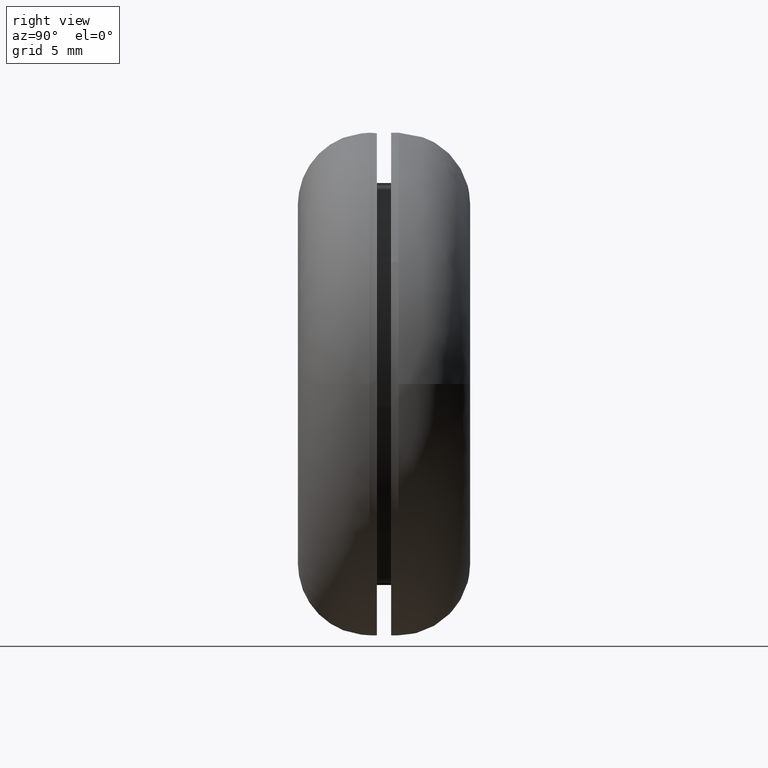
[diagram: clean part render]
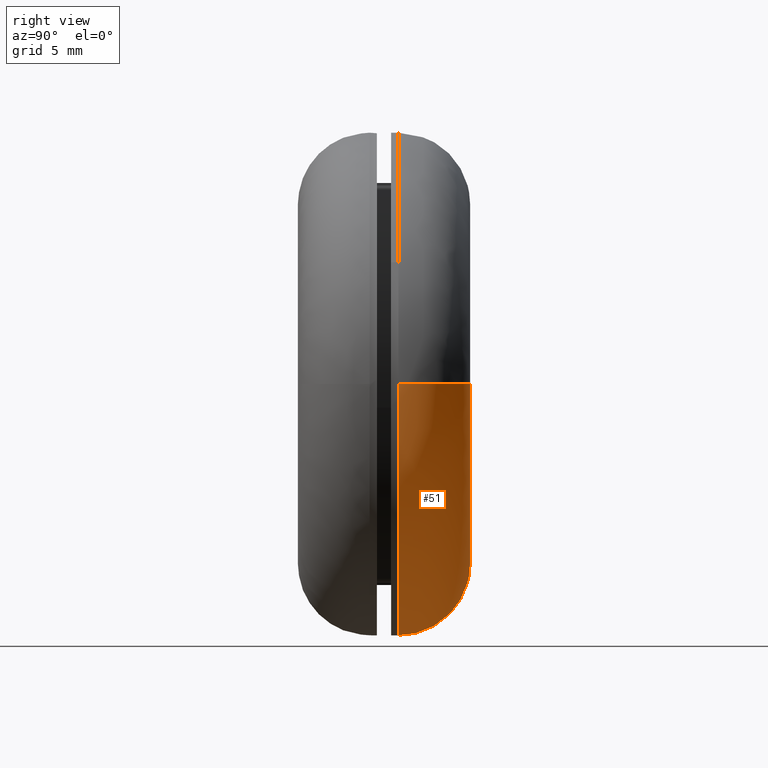
[diagram: same view with one face highlighted and labeled with its STEP entity id]
A machine part, right view. The second image highlights one B-rep face of the part: STEP entity #51.
In plain terms, the highlighted face is a freeform B-spline surface patch.
Its self-contained STEP definition (entity closure, byte-faithful):
#51=ADVANCED_FACE('',(#171),#170,.T.);
#170=( BOUNDED_SURFACE() B_SPLINE_SURFACE( 2,2,((#342,#343,#344,#345,#346),(#347,#348,#349,#350,#351),(#352,#353,#354,#355,#356),(#357,#358,#359,#360,#361),(#362,#363,#364,#365,#366)), .UNSPECIFIED.,.F.,.F.,.F.) B_SPLINE_SURFACE_WITH_KNOTS((3,2,3),(3,2,3),(-1.57079657852E+000,-1.04719707253E+000,1.43599771807E-006),(3.14159265359E+000,4.71238898038E+000,6.28318530718E+000), .UNSPECIFIED. ) GEOMETRIC_REPRESENTATION_ITEM() RATIONAL_B_SPLINE_SURFACE(((9.33012582226E-001,6.59739523824E-001,9.33012582226E-001,6.59739523824E-001,9.33012582226E-001),(9.33012550020E-001,6.59739501052E-001,9.33012550020E-001,6.59739501052E-001,9.33012550020E-001),(1.00000000000E+000,7.07106781187E-001,1.00000000000E+000,7.07106781187E-001,1.00000000000E+000),(8.66025164451E-001,6.12372266462E-001,8.66025164451E-001,6.12372266462E-001,8.66025164451E-001),(1.00000000000E+000,7.07106781187E-001,1.00000000000E+000,7.07106781187E-001,1.00000000000E+000))) REPRESENTATION_ITEM('') SURFACE() );
#171=FACE_OUTER_BOUND('',#367,.T.);
#342=CARTESIAN_POINT('',(1.24999987118E+001,1.20000000000E+001,2.19620727038E-013));
#343=CARTESIAN_POINT('',(1.24999987118E+001,1.20000000000E+001,-1.24999987118E+001));
#344=CARTESIAN_POINT('',(-6.79838224540E-012,1.20000000000E+001,-1.24999987118E+001));
#345=CARTESIAN_POINT('',(-1.24999987118E+001,1.20000000000E+001,-1.24999987118E+001));
#346=CARTESIAN_POINT('',(-1.24999987118E+001,1.20000000000E+001,2.22682242607E-013));
#347=CARTESIAN_POINT('',(1.38397466469E+001,1.20000003452E+001,2.19456663340E-013));
#348=CARTESIAN_POINT('',(1.38397466469E+001,1.20000003452E+001,-1.38397466469E+001));
#349=CARTESIAN_POINT('',(-6.79854625144E-012,1.20000003452E+001,-1.38397466469E+001));
#350=CARTESIAN_POINT('',(-1.38397466469E+001,1.20000003452E+001,-1.38397466469E+001));
#351=CARTESIAN_POINT('',(-1.38397466469E+001,1.20000003452E+001,2.22846311676E-013));
#352=CARTESIAN_POINT('',(1.50000020727E+001,1.13301258223E+001,2.14103342512E-013));
#353=CARTESIAN_POINT('',(1.50000020727E+001,1.13301258223E+001,-1.50000020727E+001));
#354=CARTESIAN_POINT('',(-6.91579522816E-012,1.13301258223E+001,-1.50000020727E+001));
#355=CARTESIAN_POINT('',(-1.50000020727E+001,1.13301258223E+001,-1.50000020727E+001));
#356=CARTESIAN_POINT('',(-1.50000020727E+001,1.13301258223E+001,2.17777162081E-013));
#357=CARTESIAN_POINT('',(1.75000041454E+001,9.88674735706E+000,2.02568543478E-013));
#358=CARTESIAN_POINT('',(1.75000041454E+001,9.88674735706E+000,-1.75000041454E+001));
#359=CARTESIAN_POINT('',(-7.16843156867E-012,9.88674735707E+000,-1.75000041454E+001));
#360=CARTESIAN_POINT('',(-1.75000041454E+001,9.88674735707E+000,-1.75000041454E+001));
#361=CARTESIAN_POINT('',(-1.75000041454E+001,9.88674735707E+000,2.06854666731E-013));
#362=CARTESIAN_POINT('',(1.75000000000E+001,6.99999282001E+000,1.80111268219E-013));
#363=CARTESIAN_POINT('',(1.75000000000E+001,6.99999282001E+000,-1.75000000000E+001));
#364=CARTESIAN_POINT('',(-7.67309152709E-012,6.99999282001E+000,-1.75000000000E+001));
#365=CARTESIAN_POINT('',(-1.75000000000E+001,6.99999282002E+000,-1.75000000000E+001));
#366=CARTESIAN_POINT('',(-1.75000000000E+001,6.99999282002E+000,1.84397390458E-013));
#367=EDGE_LOOP('',(#459,#460,#461,#462,#463,#464,#465,#466));
#459=ORIENTED_EDGE('',*,*,#536,.F.);
#460=ORIENTED_EDGE('',*,*,#537,.F.);
#461=ORIENTED_EDGE('',*,*,#538,.F.);
#462=ORIENTED_EDGE('',*,*,#539,.F.);
#463=ORIENTED_EDGE('',*,*,#530,.F.);
#464=ORIENTED_EDGE('',*,*,#504,.T.);
#465=ORIENTED_EDGE('',*,*,#506,.T.);
#466=ORIENTED_EDGE('',*,*,#535,.T.);
#504=EDGE_CURVE('',#628,#629,#630,.T.);
#506=EDGE_CURVE('',#629,#636,#643,.T.);
#530=EDGE_CURVE('',#628,#804,#805,.T.);
#535=EDGE_CURVE('',#636,#832,#839,.T.);
#536=EDGE_CURVE('',#845,#832,#846,.T.);
#537=EDGE_CURVE('',#852,#845,#853,.T.);
#538=EDGE_CURVE('',#859,#852,#860,.T.);
#539=EDGE_CURVE('',#804,#859,#866,.T.);
#628=VERTEX_POINT('',#956);
#629=VERTEX_POINT('',#957);
#630=CIRCLE('',#961,1.25000000002E+001);
#636=VERTEX_POINT('',#962);
#643=CIRCLE('',#970,1.25000000002E+001);
#804=VERTEX_POINT('',#1072);
#805=(BOUNDED_CURVE() B_SPLINE_CURVE(2,(#1073,#1074,#1075,#1076,#1077),.UNSPECIFIED.,.F.,.F.) B_SPLINE_CURVE_WITH_KNOTS((3,2,3),(-1.57079632055E+000,-1.04719707253E+000,1.41727134954E-006),.UNSPECIFIED.) CURVE() GEOMETRIC_REPRESENTATION_ITEM() RATIONAL_B_SPLINE_CURVE((9.33012582226E-001,9.33012583024E-001,1.00000000000E+000,8.66025164451E-001,1.00000000000E+000)) REPRESENTATION_ITEM('') );
#832=VERTEX_POINT('',#1093);
#839=(BOUNDED_CURVE() B_SPLINE_CURVE(2,(#1098,#1099,#1100,#1101,#1102),.UNSPECIFIED.,.F.,.F.) B_SPLINE_CURVE_WITH_KNOTS((3,2,3),(-1.57079657852E+000,-1.04719707253E+000,1.43599771807E-006),.UNSPECIFIED.) CURVE() GEOMETRIC_REPRESENTATION_ITEM() RATIONAL_B_SPLINE_CURVE((9.33012582226E-001,9.33012550020E-001,1.00000000000E+000,8.66025164451E-001,1.00000000000E+000)) REPRESENTATION_ITEM('') );
#845=VERTEX_POINT('',#1103);
#846=CIRCLE('',#1107,1.75000000000E+001);
#852=VERTEX_POINT('',#1108);
#853=CIRCLE('',#1112,1.75000000000E+001);
#859=VERTEX_POINT('',#1113);
#860=CIRCLE('',#1117,1.75000000000E+001);
#866=CIRCLE('',#1121,1.75000000000E+001);
#956=CARTESIAN_POINT('',(-1.25000000003E+001,1.20000000000E+001,-1.89494729913E-007));
#957=CARTESIAN_POINT('',(-1.11022302463E-016,1.20000000000E+001,-1.25000000004E+001));
#958=CARTESIAN_POINT('',(-9.50901579699E-011,1.20000000000E+001,-2.17079687559E-010));
#959=DIRECTION('',(2.87295599896E-016,-1.00000000000E+000,4.10989337643E-015));
#960=DIRECTION('',(7.60755347606E-012,-4.10989337643E-015,-1.00000000000E+000));
#961=AXIS2_PLACEMENT_3D('',#958,#959,#960);
#962=CARTESIAN_POINT('',(1.25000000001E+001,1.20000000000E+001,6.29388677276E-008));
#967=CARTESIAN_POINT('',(-9.50901579699E-011,1.20000000000E+001,-2.17079687559E-010));
#968=DIRECTION('',(2.87295599896E-016,-1.00000000000E+000,4.10989337643E-015));
#969=DIRECTION('',(7.60755347606E-012,-4.10989337643E-015,-1.00000000000E+000));
#970=AXIS2_PLACEMENT_3D('',#967,#968,#969);
#1072=CARTESIAN_POINT('',(-1.75000000000E+001,6.99999292102E+000,-4.22691831760E-008));
#1073=CARTESIAN_POINT('',(-1.25000000320E+001,1.20000000000E+001,2.22682242769E-013));
#1074=CARTESIAN_POINT('',(-1.38397472596E+001,1.19999999914E+001,2.22846308999E-013));
#1075=CARTESIAN_POINT('',(-1.50000020727E+001,1.13301258223E+001,2.17777162081E-013));
#1076=CARTESIAN_POINT('',(-1.75000041454E+001,9.88674735707E+000,2.06854666731E-013));
#1077=CARTESIAN_POINT('',(-1.75000000000E+001,6.99999282002E+000,1.84397390458E-013));
#1093=CARTESIAN_POINT('',(1.75000000000E+001,6.99999306221E+000,2.92842742027E-006));
#1098=CARTESIAN_POINT('',(1.24999987118E+001,1.20000000000E+001,2.19620727038E-013));
#1099=CARTESIAN_POINT('',(1.38397466469E+001,1.20000003452E+001,2.19456663340E-013));
#1100=CARTESIAN_POINT('',(1.50000020727E+001,1.13301258223E+001,2.14103342512E-013));
#1101=CARTESIAN_POINT('',(1.75000041454E+001,9.88674735706E+000,2.02568543478E-013));
#1102=CARTESIAN_POINT('',(1.75000000000E+001,6.99999282001E+000,1.80111268219E-013));
#1103=CARTESIAN_POINT('',(1.74573995736E+001,6.99999282002E+000,-1.22032787642E+000));
#1104=CARTESIAN_POINT('',(-6.35935748505E-013,6.99999641001E+000,6.01296790137E-012));
#1105=DIRECTION('',(-1.91302870105E-007,-1.00000000000E+000,2.05142161465E-007));
#1106=DIRECTION('',(-8.74946519987E-001,6.80459322666E-008,-4.84219565035E-001));
#1107=AXIS2_PLACEMENT_3D('',#1104,#1105,#1106);
#1108=CARTESIAN_POINT('',(0.00000000000E+000,7.00000000000E+000,-1.75000000000E+001));
#1109=CARTESIAN_POINT('',(-3.01980662698E-012,6.99999641001E+000,-8.35065350202E-012));
#1110=DIRECTION('',(-2.19983082090E-007,-1.00000000000E+000,-2.05142377295E-007));
#1111=DIRECTION('',(-1.72560378685E-013,-2.05142377295E-007,1.00000000000E+000));
#1112=AXIS2_PLACEMENT_3D('',#1109,#1110,#1111);
#1113=CARTESIAN_POINT('',(-1.53115611325E+001,6.99999508553E+000,-8.47384774975E+000));
#1114=CARTESIAN_POINT('',(2.80486744941E-012,6.99999643827E+000,-1.11519682378E-011));
#1115=DIRECTION('',(2.00985685315E-007,-1.00000000000E+000,-2.03527224779E-007));
#1116=DIRECTION('',(9.99921052641E-001,2.03527212607E-007,-1.25653685093E-002));
#1117=AXIS2_PLACEMENT_3D('',#1114,#1115,#1116);
#1118=CARTESIAN_POINT('',(2.80486744941E-012,6.99999643827E+000,-1.11519682378E-011));
#1119=DIRECTION('',(2.00985685315E-007,-1.00000000000E+000,-2.03527224779E-007));
#1120=DIRECTION('',(9.99921052641E-001,2.03527212607E-007,-1.25653685093E-002));
#1121=AXIS2_PLACEMENT_3D('',#1118,#1119,#1120);